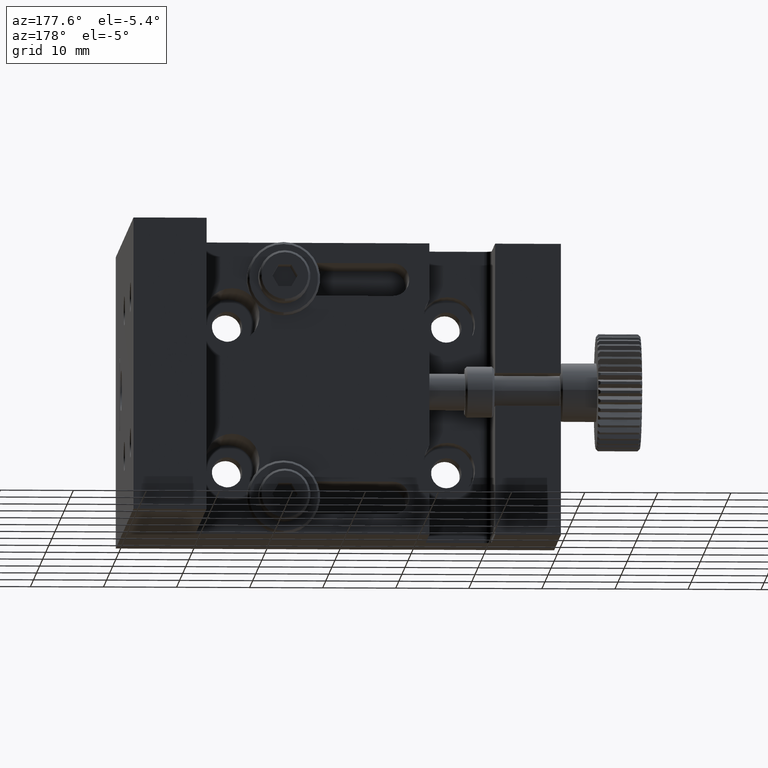
[diagram: clean part render]
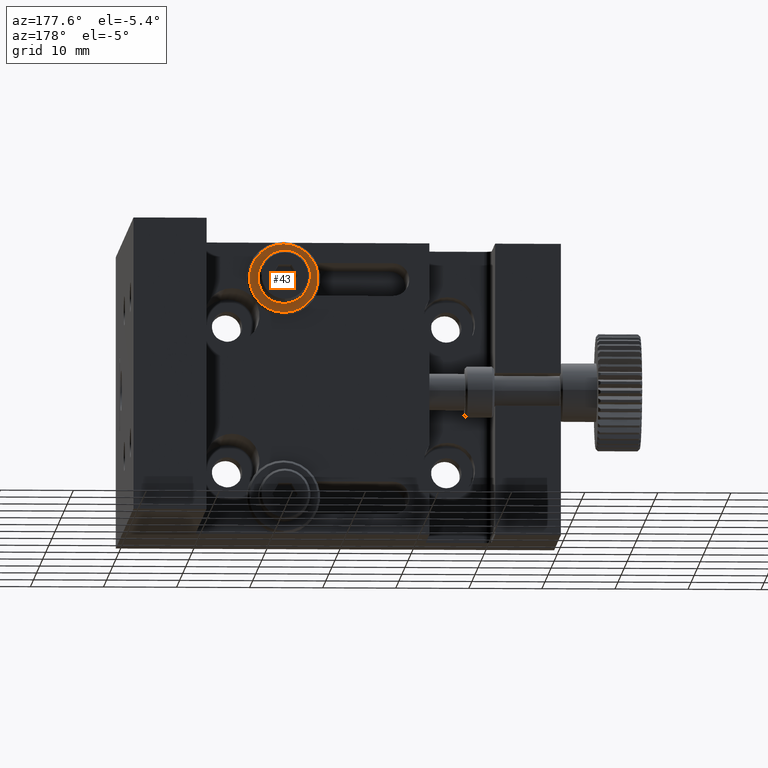
[diagram: same view with one face highlighted and labeled with its STEP entity id]
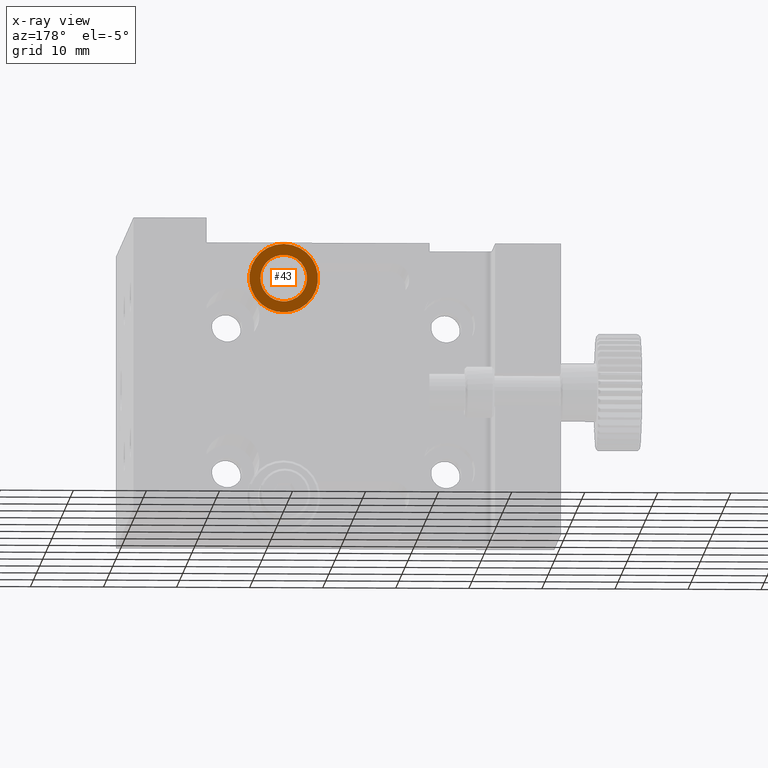
[diagram: x-ray of the same camera — body ghosted, the highlighted face saturated]
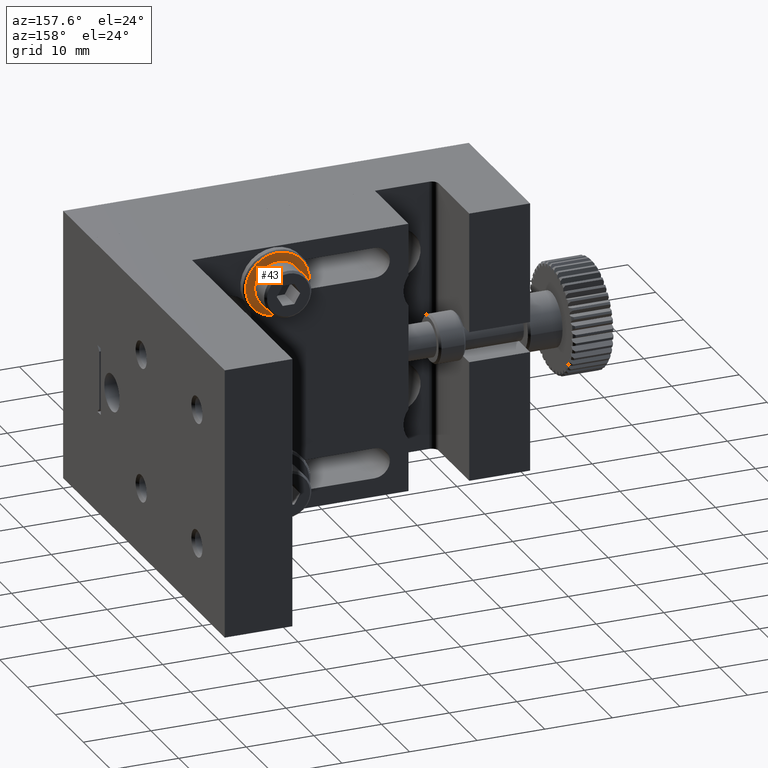
[diagram: same view with one face highlighted and labeled with its STEP entity id]
A machine part, auxiliary view. The second image highlights one B-rep face of the part: STEP entity #43.
The next image is the same camera in x-ray: the body ghosted, the highlighted face saturated — about 0% of this face is hidden behind the body in this view.
A second angle (auxiliary view) of the same face is appended — the face is thin or edge-on in the first view.
In plain terms, the highlighted planar face has unit normal (0, -1, 0).
Its self-contained STEP definition (entity closure, byte-faithful):
#24 = EDGE_CURVE ( 'NONE', #2576, #2576, #2037, .T. ) ;
#43 = ADVANCED_FACE ( 'NONE', ( #8126, #2975 ), #9063, .F. ) ;
#964 = AXIS2_PLACEMENT_3D ( 'NONE', #1092, #4989, #9268 ) ;
#1092 = CARTESIAN_POINT ( 'NONE',  ( 34.80000000000001137, 23.50000000000000000, -5.000000000000000000 ) ) ;
#2037 = CIRCLE ( 'NONE', #2895, 4.700000000013916157 ) ;
#2186 = EDGE_LOOP ( 'NONE', ( #7864 ) ) ;
#2576 = VERTEX_POINT ( 'NONE', #11814 ) ;
#2674 = DIRECTION ( 'NONE',  ( -6.195440985677337440E-17, 1.000000000000000000, -0.000000000000000000 ) ) ;
#2895 = AXIS2_PLACEMENT_3D ( 'NONE', #5195, #6127, #12145 ) ;
#2975 = FACE_OUTER_BOUND ( 'NONE', #7266, .T. ) ;
#3455 = CIRCLE ( 'NONE', #6034, 3.199999999935698725 ) ;
#4989 = DIRECTION ( 'NONE',  ( 0.000000000000000000, -1.000000000000000000, 0.000000000000000000 ) ) ;
#5195 = CARTESIAN_POINT ( 'NONE',  ( 38.00000000000000000, 23.50000000009458745, -5.000000000000000000 ) ) ;
#6034 = AXIS2_PLACEMENT_3D ( 'NONE', #11845, #2674, #7770 ) ;
#6127 = DIRECTION ( 'NONE',  ( 0.000000000000000000, -1.000000000000000000, 0.000000000000000000 ) ) ;
#7266 = EDGE_LOOP ( 'NONE', ( #12918 ) ) ;
#7770 = DIRECTION ( 'NONE',  ( 1.000000000000000000, 0.000000000000000000, 0.000000000000000000 ) ) ;
#7864 = ORIENTED_EDGE ( 'NONE', *, *, #8169, .F. ) ;
#8126 = FACE_BOUND ( 'NONE', #2186, .T. ) ;
#8169 = EDGE_CURVE ( 'NONE', #11072, #11072, #3455, .T. ) ;
#9063 = PLANE ( 'NONE',  #964 ) ;
#9268 = DIRECTION ( 'NONE',  ( 0.000000000000000000, 0.000000000000000000, -1.000000000000000000 ) ) ;
#11072 = VERTEX_POINT ( 'NONE', #13159 ) ;
#11814 = CARTESIAN_POINT ( 'NONE',  ( 38.00000000000000000, 23.50000000009458745, -9.700000000013917045 ) ) ;
#11845 = CARTESIAN_POINT ( 'NONE',  ( 38.00000000000000000, 23.49999999998090061, -5.000000000000000000 ) ) ;
#12145 = DIRECTION ( 'NONE',  ( 0.000000000000000000, 0.000000000000000000, -1.000000000000000000 ) ) ;
#12918 = ORIENTED_EDGE ( 'NONE', *, *, #24, .F. ) ;
#13159 = CARTESIAN_POINT ( 'NONE',  ( 41.19999999993569872, 23.49999999998090061, -5.000000000000000000 ) ) ;